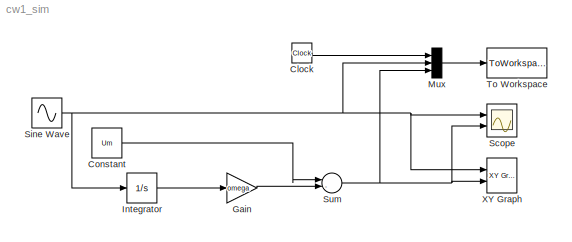
MODEL cw1_sim
KIND model
BLOCK [Clock] Clock
  SID = 10
BLOCK [Constant] Constant
  SID = 7
  Value = Um
BLOCK [Gain] Gain
  Gain = omega
  OutDataTypeStr = Inherit: Inherit via internal rule
  ParamDataTypeStr = Inherit: Inherit via internal rule
  SID = 5
  SaturateOnIntegerOverflow = off
BLOCK [Integrator] Integrator
  Ports = [1, 1]
  SID = 3
BLOCK [Mux] Mux
  DisplayOption = bar
  Inputs = 3
  Ports = [3, 1]
  SID = 11
BLOCK [Scope] Scope
  DataFormat = StructureWithTime
  Floating = off
  NumInputPorts = 2
  Ports = [2]
  SID = 2
  SampleTime = 0
  ShowLegends = off
  YMax = 5~5
  YMin = -5~-5
BLOCK [Sin] Sine Wave
  Amplitude = Um
  Frequency = omega
  Phase = fi
  Ports = [0, 1]
  SID = 1
  SampleTime = 0
BLOCK [Sum] Sum
  InputSameDT = off
  Inputs = |-+
  OutDataTypeStr = Inherit: Inherit via internal rule
  Ports = [2, 1]
  SID = 6
  SaturateOnIntegerOverflow = off
BLOCK [ToWorkspace] To Workspace
  FixptAsFi = on
  MaxDataPoints = inf
  Ports = [1]
  SID = 9
  SampleTime = -1
  Save2DSignal = 3-D array (concatenate along third dimension)
  VariableName = ws
BLOCK [Reference] XY Graph  REF=simulink/Sinks/XY Graph
  Ports = [2]
  SID = 4
  SourceBlock = simulink/Sinks/XY Graph
  SourceType = XY scope.
  st = -1
  xmax = Um
  xmin = -Um
  ymax = Um
  ymin = -Um
LINE Clock:1 -> Mux:1
LINE Constant:1 -> Sum:1
LINE Gain:1 -> Sum:2
LINE Integrator:1 -> Gain:1
LINE Mux:1 -> To Workspace:1
NET Sine Wave:1 -> Integrator:1, Mux:2, Scope:1, XY Graph:1
NET Sum:1 -> Mux:3, Scope:2, XY Graph:2
note: NET lines group one-source signal fan-out (src -> all destinations, sorted); 1:1 wires keep LINE
